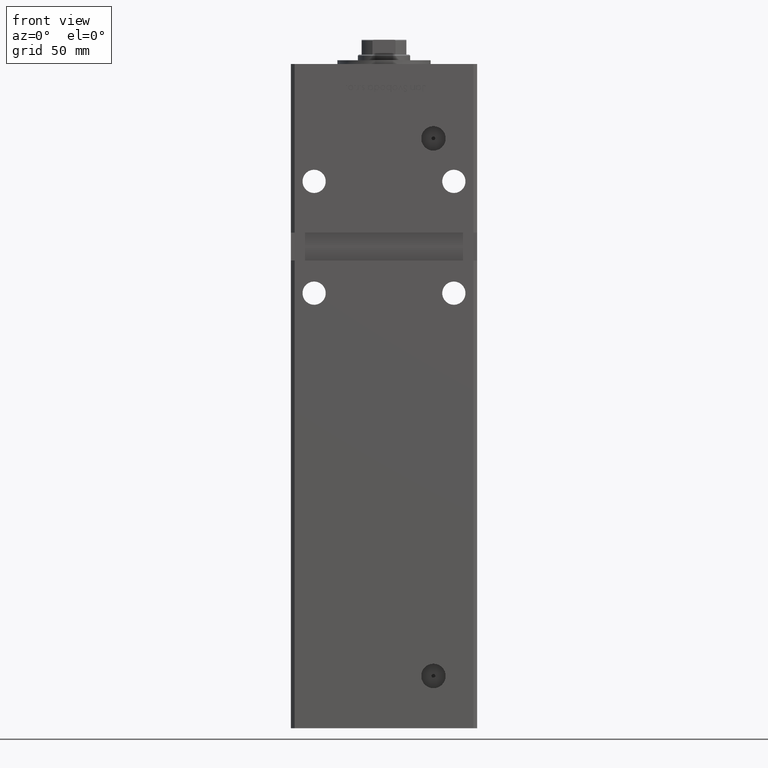
[diagram: clean part render]
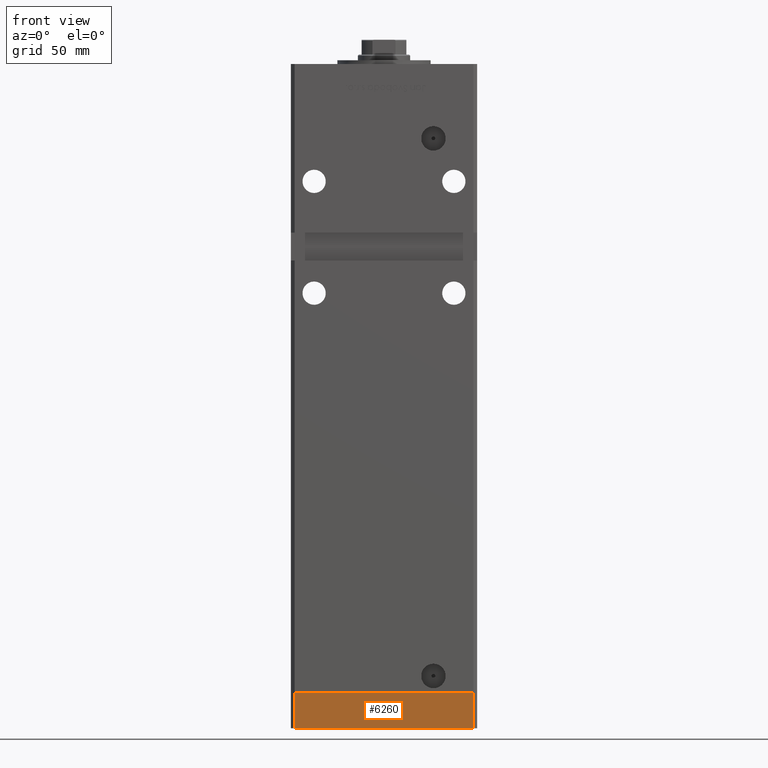
[diagram: same view with one face highlighted and labeled with its STEP entity id]
A machine part, front view. The second image highlights one B-rep face of the part: STEP entity #6260.
In plain terms, the highlighted planar face has unit normal (0, -1, -0).
Its self-contained STEP definition (entity closure, byte-faithful):
#3204 = EDGE_CURVE ( 'NONE', #27360, #13231, #50711, .T. ) ;
#5960 = ORIENTED_EDGE ( 'NONE', *, *, #40264, .F. ) ;
#6260 = ADVANCED_FACE ( 'NONE', ( #35416 ), #52601, .T. ) ;
#6821 = ORIENTED_EDGE ( 'NONE', *, *, #37728, .T. ) ;
#7446 = DIRECTION ( 'NONE',  ( 0.000000000000000000, -0.000000000000000000, -1.000000000000000000 ) ) ;
#9867 = CARTESIAN_POINT ( 'NONE',  ( -47.99999999999999289, -43.50000000000001421, -19.00000000000000000 ) ) ;
#10537 = DIRECTION ( 'NONE',  ( 1.000000000000000000, 0.000000000000000000, 0.000000000000000000 ) ) ;
#11204 = DIRECTION ( 'NONE',  ( 0.000000000000000000, -1.000000000000000000, 0.000000000000000000 ) ) ;
#11589 = VECTOR ( 'NONE', #32157, 1000.000000000000000 ) ;
#12270 = VERTEX_POINT ( 'NONE', #30016 ) ;
#13231 = VERTEX_POINT ( 'NONE', #15532 ) ;
#13329 = VECTOR ( 'NONE', #10537, 1000.000000000000000 ) ;
#13624 = LINE ( 'NONE', #9867, #16891 ) ;
#15532 = CARTESIAN_POINT ( 'NONE',  ( 47.99999999999999289, -43.50000000000001421, 0.000000000000000000 ) ) ;
#16891 = VECTOR ( 'NONE', #41875, 1000.000000000000000 ) ;
#18778 = CARTESIAN_POINT ( 'NONE',  ( 47.99999999999999289, -43.50000000000001421, -19.00000000000000000 ) ) ;
#18785 = ORIENTED_EDGE ( 'NONE', *, *, #48706, .F. ) ;
#22306 = CARTESIAN_POINT ( 'NONE',  ( -47.99999999999999289, -43.50000000000001421, -19.00000000000000000 ) ) ;
#23167 = CARTESIAN_POINT ( 'NONE',  ( -47.99999999999999289, -43.50000000000001421, 0.000000000000000000 ) ) ;
#24060 = DIRECTION ( 'NONE',  ( 0.000000000000000000, 0.000000000000000000, 1.000000000000000000 ) ) ;
#27164 = ORIENTED_EDGE ( 'NONE', *, *, #3204, .T. ) ;
#27360 = VERTEX_POINT ( 'NONE', #18778 ) ;
#30016 = CARTESIAN_POINT ( 'NONE',  ( -47.99999999999999289, -43.50000000000001421, 0.000000000000000000 ) ) ;
#31856 = CARTESIAN_POINT ( 'NONE',  ( 47.99999999999999289, -43.50000000000001421, -19.00000000000000000 ) ) ;
#32157 = DIRECTION ( 'NONE',  ( 1.000000000000000000, 0.000000000000000000, 0.000000000000000000 ) ) ;
#32787 = AXIS2_PLACEMENT_3D ( 'NONE', #51829, #11204, #7446 ) ;
#35163 = CARTESIAN_POINT ( 'NONE',  ( -47.99999999999999289, -43.50000000000001421, -19.00000000000000000 ) ) ;
#35416 = FACE_OUTER_BOUND ( 'NONE', #38237, .T. ) ;
#36205 = LINE ( 'NONE', #35163, #11589 ) ;
#37728 = EDGE_CURVE ( 'NONE', #44909, #27360, #36205, .T. ) ;
#38237 = EDGE_LOOP ( 'NONE', ( #5960, #18785, #6821, #27164 ) ) ;
#40264 = EDGE_CURVE ( 'NONE', #12270, #13231, #43343, .T. ) ;
#41875 = DIRECTION ( 'NONE',  ( 0.000000000000000000, 0.000000000000000000, 1.000000000000000000 ) ) ;
#43026 = VECTOR ( 'NONE', #24060, 1000.000000000000000 ) ;
#43343 = LINE ( 'NONE', #23167, #13329 ) ;
#44909 = VERTEX_POINT ( 'NONE', #22306 ) ;
#48706 = EDGE_CURVE ( 'NONE', #44909, #12270, #13624, .T. ) ;
#50711 = LINE ( 'NONE', #31856, #43026 ) ;
#51829 = CARTESIAN_POINT ( 'NONE',  ( -47.99999999999999289, -43.50000000000001421, -19.00000000000000000 ) ) ;
#52601 = PLANE ( 'NONE',  #32787 ) ;